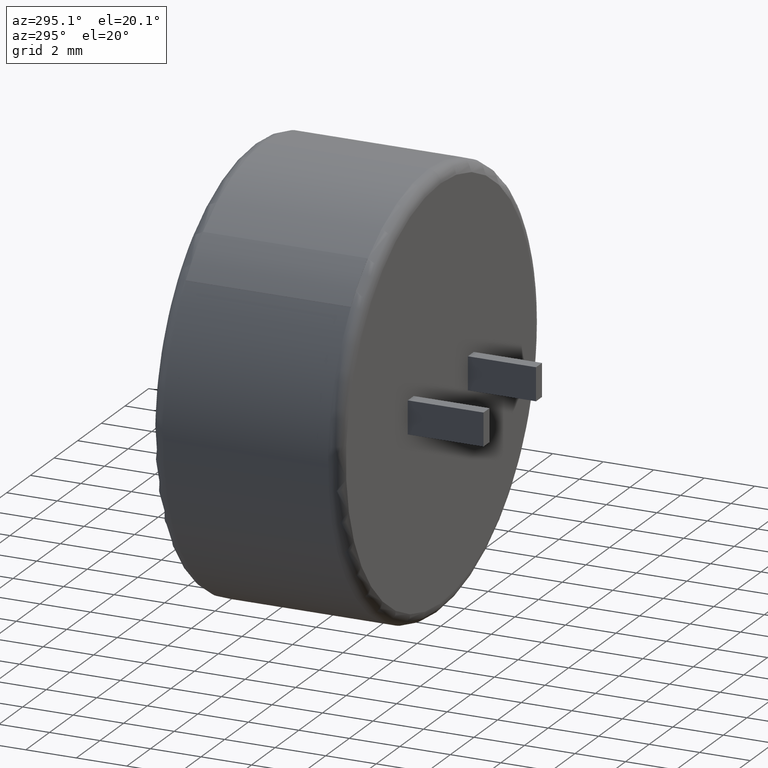
[diagram: clean part render]
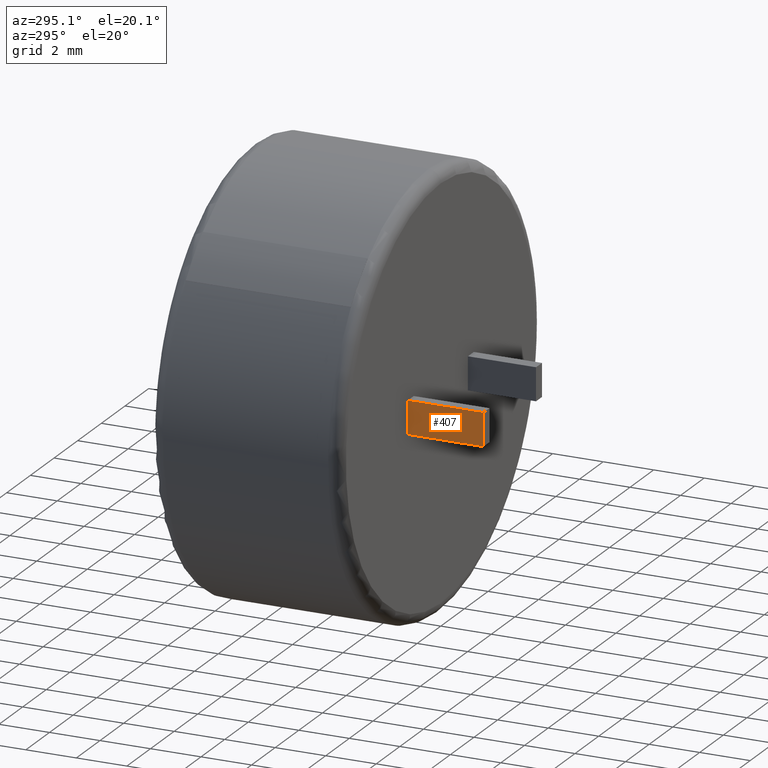
[diagram: same view with one face highlighted and labeled with its STEP entity id]
A machine part, auxiliary view. The second image highlights one B-rep face of the part: STEP entity #407.
In plain terms, the highlighted planar face has unit normal (-1, 0, 0).
Its self-contained STEP definition (entity closure, byte-faithful):
#41 = DIRECTION ( 'NONE',  ( -1.000000000000000000, 0.0000000000000000000, 0.0000000000000000000 ) ) ;
#149 = VERTEX_POINT ( 'NONE', #1785 ) ;
#284 = CARTESIAN_POINT ( 'NONE',  ( -2.789999999999999100, -3.000000000000000000, 5.403370410411914800E-015 ) ) ;
#378 = VECTOR ( 'NONE', #2513, 1000.000000000000000 ) ;
#407 = ADVANCED_FACE ( 'NONE', ( #1661 ), #416, .T. ) ;
#416 = PLANE ( 'NONE',  #2107 ) ;
#476 = DIRECTION ( 'NONE',  ( 0.0000000000000000000, 0.0000000000000000000, 1.000000000000000000 ) ) ;
#578 = EDGE_CURVE ( 'NONE', #149, #657, #1395, .T. ) ;
#585 = DIRECTION ( 'NONE',  ( 0.0000000000000000000, 0.0000000000000000000, 1.000000000000000000 ) ) ;
#621 = VECTOR ( 'NONE', #1368, 1000.000000000000000 ) ;
#657 = VERTEX_POINT ( 'NONE', #1430 ) ;
#762 = LINE ( 'NONE', #1591, #1404 ) ;
#839 = CARTESIAN_POINT ( 'NONE',  ( -2.789999999999999100, -0.0000000000000000000, -0.6499999999999945800 ) ) ;
#877 = EDGE_CURVE ( 'NONE', #1167, #149, #1769, .T. ) ;
#1167 = VERTEX_POINT ( 'NONE', #2119 ) ;
#1368 = DIRECTION ( 'NONE',  ( -0.0000000000000000000, 1.000000000000000000, -0.0000000000000000000 ) ) ;
#1395 = LINE ( 'NONE', #2424, #621 ) ;
#1399 = EDGE_LOOP ( 'NONE', ( #2346, #2645, #1601, #1855 ) ) ;
#1404 = VECTOR ( 'NONE', #2749, 1000.000000000000000 ) ;
#1430 = CARTESIAN_POINT ( 'NONE',  ( -2.789999999999999100, 0.0000000000000000000, 0.6500000000000053500 ) ) ;
#1513 = CARTESIAN_POINT ( 'NONE',  ( -2.789999999999999100, -3.000000000000000000, -0.6499999999999945800 ) ) ;
#1591 = CARTESIAN_POINT ( 'NONE',  ( -2.789999999999999100, -3.000000000000000000, -0.6499999999999945800 ) ) ;
#1592 = EDGE_CURVE ( 'NONE', #1677, #657, #1709, .T. ) ;
#1601 = ORIENTED_EDGE ( 'NONE', *, *, #877, .T. ) ;
#1661 = FACE_OUTER_BOUND ( 'NONE', #1399, .T. ) ;
#1677 = VERTEX_POINT ( 'NONE', #839 ) ;
#1709 = LINE ( 'NONE', #2505, #378 ) ;
#1769 = LINE ( 'NONE', #1513, #2716 ) ;
#1785 = CARTESIAN_POINT ( 'NONE',  ( -2.789999999999999100, -3.000000000000000000, 0.6500000000000053500 ) ) ;
#1855 = ORIENTED_EDGE ( 'NONE', *, *, #578, .T. ) ;
#2015 = EDGE_CURVE ( 'NONE', #1167, #1677, #762, .T. ) ;
#2107 = AXIS2_PLACEMENT_3D ( 'NONE', #284, #41, #476 ) ;
#2119 = CARTESIAN_POINT ( 'NONE',  ( -2.789999999999999100, -3.000000000000000000, -0.6499999999999945800 ) ) ;
#2346 = ORIENTED_EDGE ( 'NONE', *, *, #1592, .F. ) ;
#2424 = CARTESIAN_POINT ( 'NONE',  ( -2.789999999999999100, -3.000000000000000000, 0.6500000000000053500 ) ) ;
#2505 = CARTESIAN_POINT ( 'NONE',  ( -2.789999999999999100, 0.0000000000000000000, 5.403370410411914800E-015 ) ) ;
#2513 = DIRECTION ( 'NONE',  ( 0.0000000000000000000, 0.0000000000000000000, 1.000000000000000000 ) ) ;
#2645 = ORIENTED_EDGE ( 'NONE', *, *, #2015, .F. ) ;
#2716 = VECTOR ( 'NONE', #585, 1000.000000000000000 ) ;
#2749 = DIRECTION ( 'NONE',  ( -0.0000000000000000000, 1.000000000000000000, -0.0000000000000000000 ) ) ;